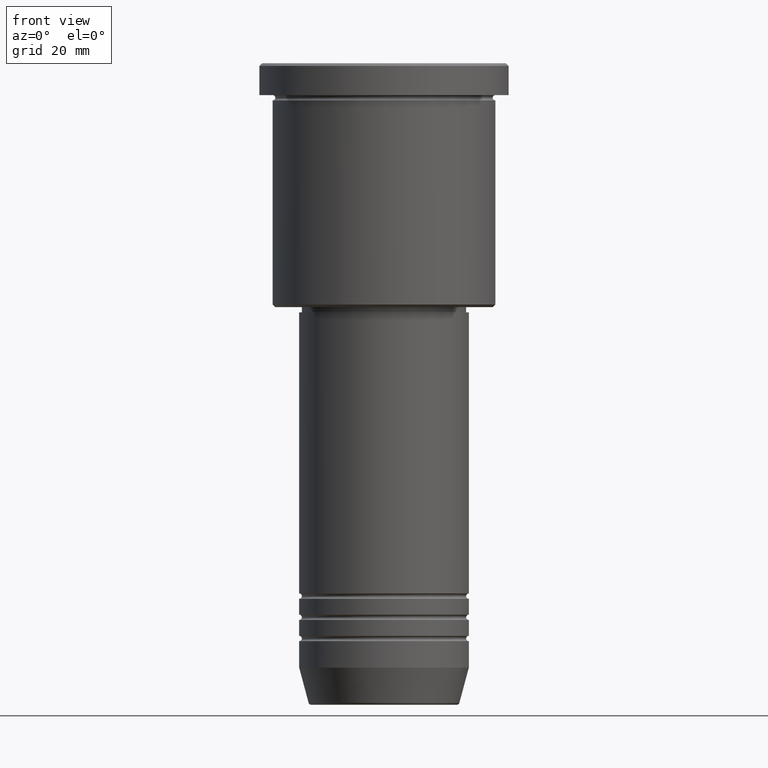
[diagram: clean part render]
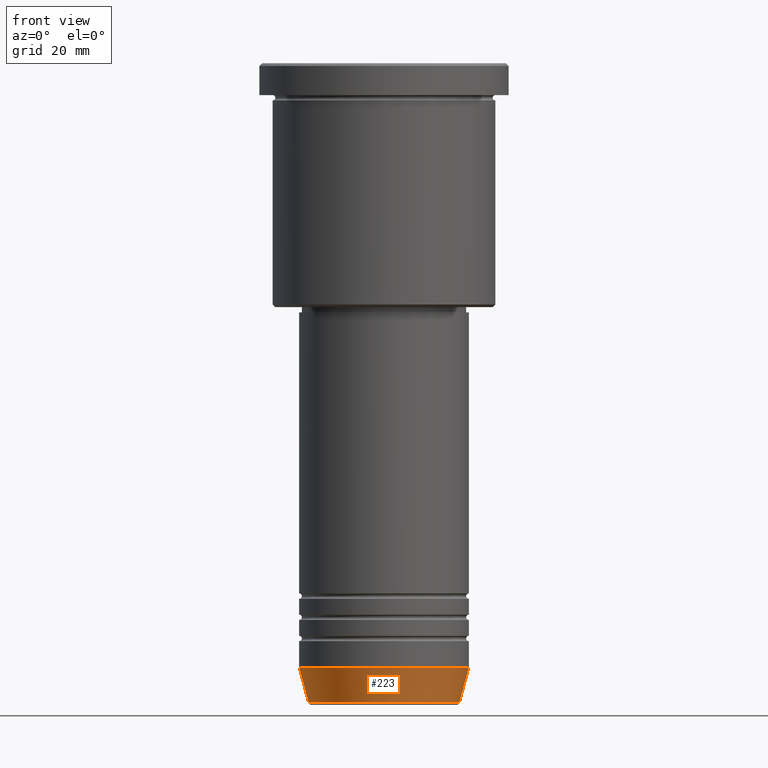
[diagram: same view with one face highlighted and labeled with its STEP entity id]
A machine part, front view. The second image highlights one B-rep face of the part: STEP entity #223.
In plain terms, the highlighted conical surface has half-angle 15 deg.
Its self-contained STEP definition (entity closure, byte-faithful):
#3 = LINE ( 'NONE', #541, #356 ) ;
#39 = CARTESIAN_POINT ( 'NONE',  ( 0.000000000000000000, 0.000000000000000000, -114.0000000000000000 ) ) ;
#84 = DIRECTION ( 'NONE',  ( 1.000000000000000000, 0.000000000000000000, 0.000000000000000000 ) ) ;
#131 = AXIS2_PLACEMENT_3D ( 'NONE', #722, #1080, #84 ) ;
#156 = ORIENTED_EDGE ( 'NONE', *, *, #807, .T. ) ;
#176 = ORIENTED_EDGE ( 'NONE', *, *, #385, .F. ) ;
#181 = DIRECTION ( 'NONE',  ( 0.2588190451025213501, 0.000000000000000000, 0.9659258262890680902 ) ) ;
#223 = ADVANCED_FACE ( 'NONE', ( #513 ), #258, .T. ) ;
#239 = VECTOR ( 'NONE', #181, 1000.000000000000000 ) ;
#241 = DIRECTION ( 'NONE',  ( 1.000000000000000000, 0.000000000000000000, 0.000000000000000000 ) ) ;
#258 = CONICAL_SURFACE ( 'NONE', #995, 16.00000000000000000, 0.2617993877991500740 ) ;
#266 = VERTEX_POINT ( 'NONE', #830 ) ;
#293 = EDGE_CURVE ( 'NONE', #714, #814, #3, .T. ) ;
#356 = VECTOR ( 'NONE', #449, 1000.000000000000000 ) ;
#369 = LINE ( 'NONE', #1078, #239 ) ;
#385 = EDGE_CURVE ( 'NONE', #814, #609, #454, .T. ) ;
#449 = DIRECTION ( 'NONE',  ( -0.2588190451025213501, 3.169619151431772337E-17, 0.9659258262890680902 ) ) ;
#454 = CIRCLE ( 'NONE', #131, 16.00000000000000000 ) ;
#513 = FACE_OUTER_BOUND ( 'NONE', #1076, .T. ) ;
#526 = ORIENTED_EDGE ( 'NONE', *, *, #293, .F. ) ;
#541 = CARTESIAN_POINT ( 'NONE',  ( -16.00000000000000000, 1.959434878635765131E-15, -114.0000000000000000 ) ) ;
#607 = DIRECTION ( 'NONE',  ( 1.000000000000000000, 0.000000000000000000, 0.000000000000000000 ) ) ;
#609 = VERTEX_POINT ( 'NONE', #1123 ) ;
#620 = CIRCLE ( 'NONE', #711, 14.22365507213718949 ) ;
#672 = EDGE_CURVE ( 'NONE', #714, #266, #620, .T. ) ;
#689 = CARTESIAN_POINT ( 'NONE',  ( 0.000000000000000000, 0.000000000000000000, -120.6294095225512564 ) ) ;
#711 = AXIS2_PLACEMENT_3D ( 'NONE', #689, #1048, #241 ) ;
#714 = VERTEX_POINT ( 'NONE', #1172 ) ;
#716 = ORIENTED_EDGE ( 'NONE', *, *, #672, .T. ) ;
#722 = CARTESIAN_POINT ( 'NONE',  ( 0.000000000000000000, 0.000000000000000000, -114.0000000000000000 ) ) ;
#775 = DIRECTION ( 'NONE',  ( -0.000000000000000000, -0.000000000000000000, 1.000000000000000000 ) ) ;
#807 = EDGE_CURVE ( 'NONE', #266, #609, #369, .T. ) ;
#814 = VERTEX_POINT ( 'NONE', #1106 ) ;
#830 = CARTESIAN_POINT ( 'NONE',  ( 14.22365507213718949, 0.000000000000000000, -120.6294095225512564 ) ) ;
#995 = AXIS2_PLACEMENT_3D ( 'NONE', #39, #775, #607 ) ;
#1048 = DIRECTION ( 'NONE',  ( -0.000000000000000000, -0.000000000000000000, 1.000000000000000000 ) ) ;
#1076 = EDGE_LOOP ( 'NONE', ( #526, #716, #156, #176 ) ) ;
#1078 = CARTESIAN_POINT ( 'NONE',  ( 16.00000000000000000, 0.000000000000000000, -114.0000000000000000 ) ) ;
#1080 = DIRECTION ( 'NONE',  ( -0.000000000000000000, -0.000000000000000000, 1.000000000000000000 ) ) ;
#1106 = CARTESIAN_POINT ( 'NONE',  ( -16.00000000000000000, 1.959434878635765131E-15, -114.0000000000000000 ) ) ;
#1123 = CARTESIAN_POINT ( 'NONE',  ( 16.00000000000000000, 0.000000000000000000, -114.0000000000000000 ) ) ;
#1172 = CARTESIAN_POINT ( 'NONE',  ( -14.22365507213718949, 1.850665122131323731E-15, -120.6294095225512564 ) ) ;